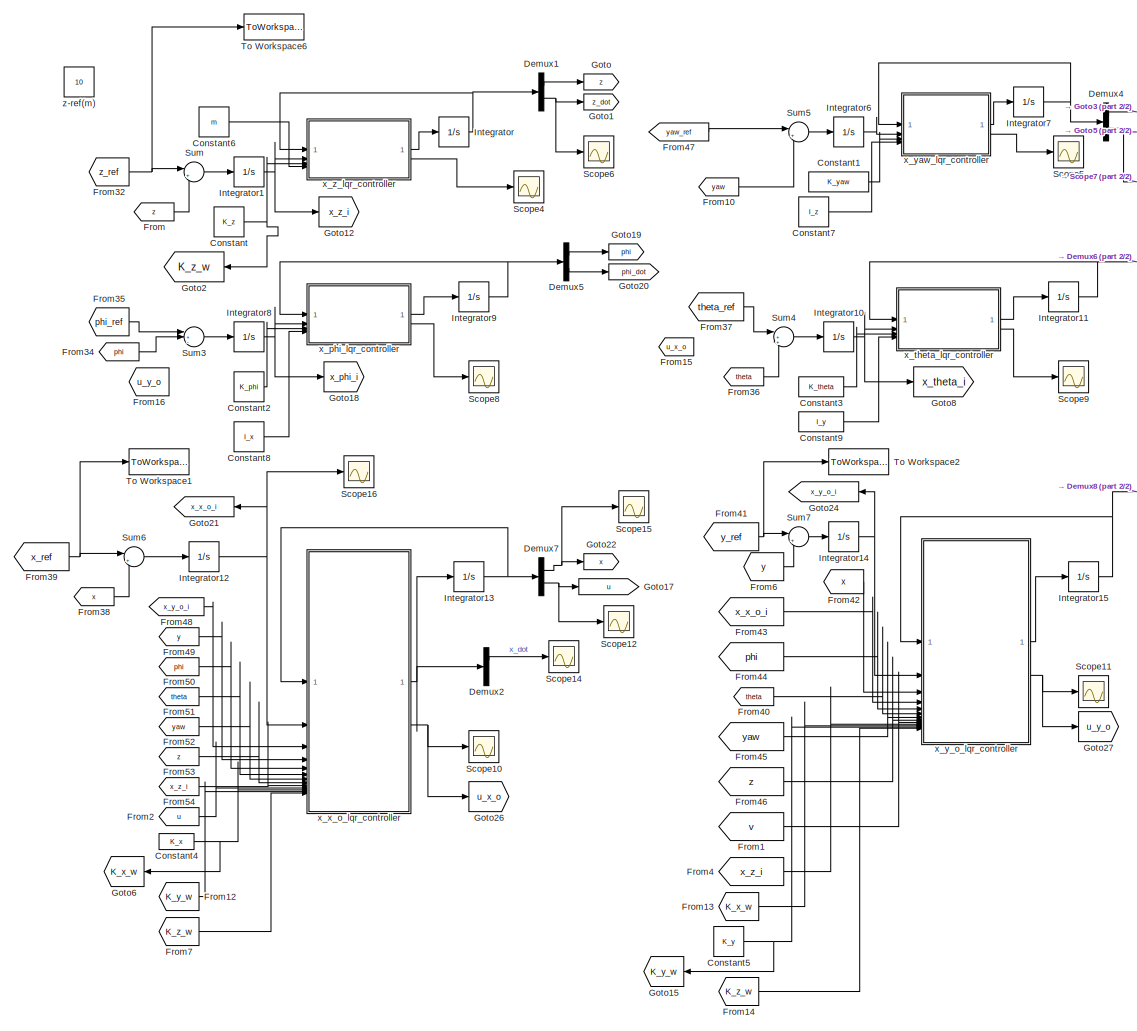
[diagram: root canvas - part 1/2, center side, full height]
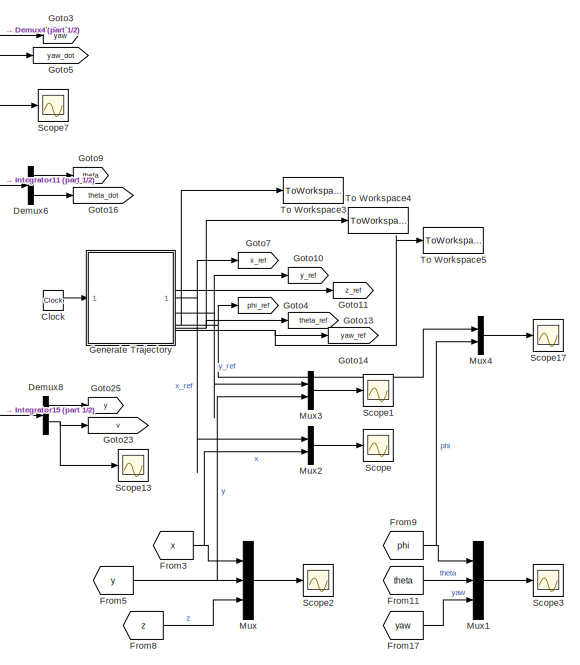
[diagram: root canvas - part 2/2, middle right region]
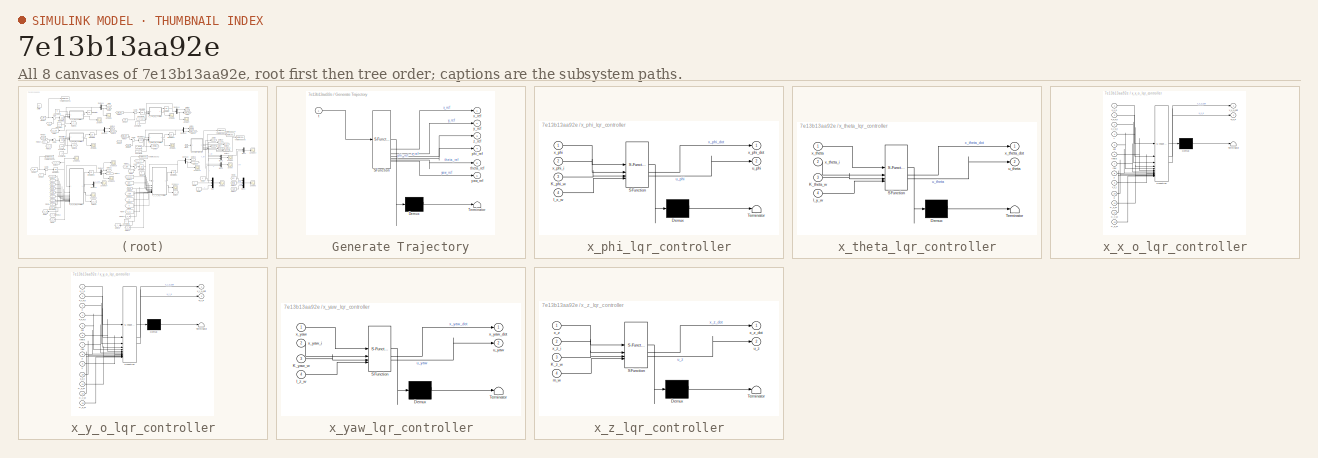
[diagram: thumbnail index - all 8 canvases of the model, root first then tree order]
MODEL slx_7e13b13aa92e
KIND model
CONFIG AbsTol = auto
CONFIG EnableMultiTasking = off
CONFIG FixedStep = 1e-2
CONFIG InitFcn = drone_init_param
CONFIG MaxStep = auto
CONFIG MinStep = auto
CONFIG RelTol = 1e-3
CONFIG SampleTimeConstraint = Unconstrained
CONFIG SolverName = FixedStepAuto
CONFIG StartTime = 0.0
CONFIG StopTime = 200
BLOCK [Clock] Clock
BLOCK [Constant] Constant
  Value = K_z
BLOCK [Constant] Constant1
  Value = K_yaw
BLOCK [Constant] Constant2
  Value = K_phi
BLOCK [Constant] Constant3
  Value = K_theta
BLOCK [Constant] Constant4
  Value = K_x
BLOCK [Constant] Constant5
  Value = K_y
BLOCK [Constant] Constant6
  Value = m
BLOCK [Constant] Constant7
  Value = I_z
BLOCK [Constant] Constant8
  Value = I_x
BLOCK [Constant] Constant9
  Value = I_y
BLOCK [Demux] Demux1
  Outputs = 2
BLOCK [Demux] Demux2
  Outputs = 2
BLOCK [Demux] Demux4
  Outputs = 2
BLOCK [Demux] Demux5
  Outputs = 2
BLOCK [Demux] Demux6
  Outputs = 2
BLOCK [Demux] Demux7
  Outputs = 2
BLOCK [Demux] Demux8
  Outputs = 2
BLOCK [From] From
  GotoTag = z
BLOCK [From] From1
  GotoTag = v
BLOCK [From] From10
  GotoTag = yaw
BLOCK [From] From11
  GotoTag = theta
BLOCK [From] From12
  GotoTag = K_y_w
BLOCK [From] From13
  GotoTag = K_x_w
BLOCK [From] From14
  GotoTag = K_z_w
BLOCK [From] From15
  GotoTag = u_x_o
BLOCK [From] From16
  GotoTag = u_y_o
BLOCK [From] From17
  GotoTag = yaw
BLOCK [From] From2
  GotoTag = u
BLOCK [From] From3
  GotoTag = x
BLOCK [From] From32
  GotoTag = z_ref
BLOCK [From] From34
  GotoTag = phi
BLOCK [From] From35
  GotoTag = phi_ref
BLOCK [From] From36
  GotoTag = theta
BLOCK [From] From37
  GotoTag = theta_ref
BLOCK [From] From38
  GotoTag = x
BLOCK [From] From39
  GotoTag = x_ref
BLOCK [From] From4
  GotoTag = x_z_i
BLOCK [From] From40
  GotoTag = theta
BLOCK [From] From41
  GotoTag = y_ref
BLOCK [From] From42
  GotoTag = x
BLOCK [From] From43
  GotoTag = x_x_o_i
BLOCK [From] From44
  GotoTag = phi
BLOCK [From] From45
  GotoTag = yaw
BLOCK [From] From46
  GotoTag = z
BLOCK [From] From47
  GotoTag = yaw_ref
BLOCK [From] From48
  GotoTag = x_y_o_i
BLOCK [From] From49
  GotoTag = y
BLOCK [From] From5
  GotoTag = y
BLOCK [From] From50
  GotoTag = phi
BLOCK [From] From51
  GotoTag = theta
BLOCK [From] From52
  GotoTag = yaw
BLOCK [From] From53
  GotoTag = z
BLOCK [From] From54
  GotoTag = x_z_i
BLOCK [From] From6
  GotoTag = y
BLOCK [From] From7
  GotoTag = K_z_w
BLOCK [From] From8
  GotoTag = z
BLOCK [From] From9
  GotoTag = phi
BLOCK [SubSystem] Generate Trajectory
  ErrorFcn = Stateflow.Translate.translate
  LibrarySourceBlock = simulink/User-Defined\nFunctions/MATLAB Function
  PermitHierarchicalResolution = ExplicitOnly
  SFBlockType = MATLAB Function
  TreatAsAtomicUnit = on
BLOCK [Demux] Generate Trajectory/ Demux 
  Outputs = 1
BLOCK [S-Function] Generate Trajectory/ SFunction 
  EnableBusSupport = on
  FunctionName = sf_sfun
  PortCounts = [1 7]
  SFcnIsStateOwnerBlock = off
  SFunctionDeploymentMode = off
  Tag = Stateflow S-Function 2
BLOCK [Terminator] Generate Trajectory/ Terminator 
BLOCK [Outport] Generate Trajectory/phi_ref
  Port = 4
BLOCK [Inport] Generate Trajectory/t
BLOCK [Outport] Generate Trajectory/theta_ref
  Port = 5
BLOCK [Outport] Generate Trajectory/x_ref
BLOCK [Outport] Generate Trajectory/y_ref
  Port = 2
BLOCK [Outport] Generate Trajectory/yaw_ref
  Port = 6
BLOCK [Outport] Generate Trajectory/z_ref
  Port = 3
BLOCK [Goto] Goto
  GotoTag = z
BLOCK [Goto] Goto1
  GotoTag = z_dot
BLOCK [Goto] Goto10
  GotoTag = y_ref
BLOCK [Goto] Goto11
  GotoTag = z_ref
BLOCK [Goto] Goto12
  GotoTag = x_z_i
BLOCK [Goto] Goto13
  GotoTag = theta_ref
BLOCK [Goto] Goto14
  GotoTag = yaw_ref
BLOCK [Goto] Goto15
  GotoTag = K_y_w
  NameLocation = top
BLOCK [Goto] Goto16
  GotoTag = theta_dot
BLOCK [Goto] Goto17
  GotoTag = u
BLOCK [Goto] Goto18
  GotoTag = x_phi_i
BLOCK [Goto] Goto19
  GotoTag = phi
BLOCK [Goto] Goto2
  GotoTag = K_z_w
  NameLocation = top
BLOCK [Goto] Goto20
  GotoTag = phi_dot
BLOCK [Goto] Goto21
  GotoTag = x_x_o_i
  NameLocation = top
BLOCK [Goto] Goto22
  GotoTag = x
BLOCK [Goto] Goto23
  GotoTag = v
BLOCK [Goto] Goto24
  GotoTag = x_y_o_i
  NameLocation = top
BLOCK [Goto] Goto25
  GotoTag = y
BLOCK [Goto] Goto26
  GotoTag = u_x_o
BLOCK [Goto] Goto27
  GotoTag = u_y_o
BLOCK [Goto] Goto3
  GotoTag = yaw
BLOCK [Goto] Goto4
  GotoTag = phi_ref
BLOCK [Goto] Goto5
  GotoTag = yaw_dot
BLOCK [Goto] Goto6
  GotoTag = K_x_w
  NameLocation = top
BLOCK [Goto] Goto7
  GotoTag = x_ref
BLOCK [Goto] Goto8
  GotoTag = x_theta_i
BLOCK [Goto] Goto9
  GotoTag = theta
BLOCK [Integrator] Integrator
  InitialCondition = [0;0]
BLOCK [Integrator] Integrator1
BLOCK [Integrator] Integrator10
BLOCK [Integrator] Integrator11
  InitialCondition = [0;0]
BLOCK [Integrator] Integrator12
BLOCK [Integrator] Integrator13
  InitialCondition = [0;0]
BLOCK [Integrator] Integrator14
BLOCK [Integrator] Integrator15
  InitialCondition = [0;0]
BLOCK [Integrator] Integrator6
BLOCK [Integrator] Integrator7
  InitialCondition = [0;0]
BLOCK [Integrator] Integrator8
BLOCK [Integrator] Integrator9
  InitialCondition = [0;0]
BLOCK [Mux] Mux
  DisplayOption = bar
  Inputs = 3
BLOCK [Mux] Mux1
  DisplayOption = bar
  Inputs = 3
BLOCK [Mux] Mux2
  DisplayOption = bar
  Inputs = 2
BLOCK [Mux] Mux3
  DisplayOption = bar
  Inputs = 2
BLOCK [Mux] Mux4
  DisplayOption = bar
  Inputs = 2
BLOCK [Scope] Scope
  Floating = off
  NumInputPorts = 1
  ScopeSpecificationString = Simulink.scopes.TimeScopeBlockCfg('CurrentConfiguration', extmgr.ConfigurationSet(extmgr.Configuration('Core','General UI',true),extmgr.Configuration('Core','Source UI',true),extmgr.Configuration('Sources','WiredSimulink',true,'DataLoggingVariableName','ScopeData5'),extmgr.Configuration('Visuals','Time Domain',true,'SerializedDisplays',{struct('MinYLimReal','-1.3125','MaxYLimReal','1.8125','YLabel...<+1444ch>
BLOCK [Scope] Scope1
  Floating = off
  NumInputPorts = 1
  ScopeSpecificationString = Simulink.scopes.TimeScopeBlockCfg('CurrentConfiguration', extmgr.ConfigurationSet(extmgr.Configuration('Core','General UI',true),extmgr.Configuration('Core','Source UI',true),extmgr.Configuration('Sources','WiredSimulink',true,'DataLoggingVariableName','ScopeData6'),extmgr.Configuration('Visuals','Time Domain',true,'SerializedDisplays',{struct('MinYLimReal','-0.9226','MaxYLimReal','1.3047','YLabel...<+1444ch>
BLOCK [Scope] Scope10
  Floating = off
  NumInputPorts = 1
  ScopeSpecificationString = Simulink.scopes.TimeScopeBlockCfg('CurrentConfiguration', extmgr.ConfigurationSet(extmgr.Configuration('Core','General UI',true),extmgr.Configuration('Core','Source UI',true),extmgr.Configuration('Sources','WiredSimulink',true,'DataLoggingVariableName','ScopeData3'),extmgr.Configuration('Visuals','Time Domain',true,'SerializedDisplays',{struct('MinYLimReal','-0.24302','MaxYLimReal','0.13995','YLab...<+1450ch>
BLOCK [Scope] Scope11
  Floating = off
  NumInputPorts = 1
  ScopeSpecificationString = Simulink.scopes.TimeScopeBlockCfg('CurrentConfiguration', extmgr.ConfigurationSet(extmgr.Configuration('Core','General UI',true),extmgr.Configuration('Core','Source UI',true),extmgr.Configuration('Sources','WiredSimulink',true,'DataLoggingVariableName','ScopeData4'),extmgr.Configuration('Visuals','Time Domain',true,'SerializedDisplays',{struct('MinYLimReal','-0.0026','MaxYLimReal','0.0026','YLabel...<+1419ch>
BLOCK [Scope] Scope12
  Floating = off
  NumInputPorts = 1
  ScopeSpecificationString = Simulink.scopes.TimeScopeBlockCfg('CurrentConfiguration', extmgr.ConfigurationSet(extmgr.Configuration('Core','General UI',true),extmgr.Configuration('Core','Source UI',true),extmgr.Configuration('Sources','WiredSimulink',true,'DataLoggingVariableName','ScopeData3'),extmgr.Configuration('Visuals','Time Domain',true,'SerializedDisplays',{struct('MinYLimReal','-1.02575','MaxYLimReal','0.5935','YLabe...<+1430ch>
BLOCK [Scope] Scope13
  Floating = off
  NumInputPorts = 1
  ScopeSpecificationString = Simulink.scopes.TimeScopeBlockCfg('CurrentConfiguration', extmgr.ConfigurationSet(extmgr.Configuration('Core','General UI',true),extmgr.Configuration('Core','Source UI',true),extmgr.Configuration('Sources','WiredSimulink',true,'DataLoggingVariableName','ScopeData4'),extmgr.Configuration('Visuals','Time Domain',true,'SerializedDisplays',{struct('MinYLimReal','-0.03084','MaxYLimReal','0.02581','YLab...<+1407ch>
BLOCK [Scope] Scope14
  Floating = off
  NumInputPorts = 1
  ScopeSpecificationString = Simulink.scopes.TimeScopeBlockCfg('CurrentConfiguration', extmgr.ConfigurationSet(extmgr.Configuration('Core','General UI',true),extmgr.Configuration('Core','Source UI',true),extmgr.Configuration('Sources','WiredSimulink',true,'DataLoggingVariableName','ScopeData1'),extmgr.Configuration('Visuals','Time Domain',true,'SerializedDisplays',{struct('MinYLimReal','-0.91634','MaxYLimReal','0.9394','YLabe...<+1425ch>
BLOCK [Scope] Scope15
  Floating = off
  NumInputPorts = 1
  ScopeSpecificationString = Simulink.scopes.TimeScopeBlockCfg('CurrentConfiguration', extmgr.ConfigurationSet(extmgr.Configuration('Core','General UI',true),extmgr.Configuration('Core','Source UI',true),extmgr.Configuration('Sources','WiredSimulink',true,'DataLoggingVariableName','ScopeData2'),extmgr.Configuration('Visuals','Time Domain',true,'SerializedDisplays',{struct('MinYLimReal','-1.40344','MaxYLimReal','1.85507','YLab...<+1432ch>
BLOCK [Scope] Scope16
  Floating = off
  NumInputPorts = 1
  ScopeSpecificationString = Simulink.scopes.TimeScopeBlockCfg('CurrentConfiguration', extmgr.ConfigurationSet(extmgr.Configuration('Core','General UI',true),extmgr.Configuration('Core','Source UI',true),extmgr.Configuration('Sources','WiredSimulink',true,'DataLoggingVariableName','ScopeData1'),extmgr.Configuration('Visuals','Time Domain',true,'SerializedDisplays',{struct('MinYLimReal','-1.44918','MaxYLimReal','1.92827','YLab...<+1415ch>
BLOCK [Scope] Scope17
  Floating = off
  NumInputPorts = 1
  ScopeSpecificationString = Simulink.scopes.TimeScopeBlockCfg('CurrentConfiguration', extmgr.ConfigurationSet(extmgr.Configuration('Core','General UI',true),extmgr.Configuration('Core','Source UI',true),extmgr.Configuration('Sources','WiredSimulink',true,'DataLoggingVariableName','ScopeData1'),extmgr.Configuration('Visuals','Time Domain',true,'SerializedDisplays',{struct('MinYLimReal','-0.02705','MaxYLimReal','0.22705','YLab...<+1501ch>
BLOCK [Scope] Scope2
  Floating = off
  NumInputPorts = 1
  ScopeSpecificationString = Simulink.scopes.TimeScopeBlockCfg('CurrentConfiguration', extmgr.ConfigurationSet(extmgr.Configuration('Core','General UI',true),extmgr.Configuration('Core','Source UI',true),extmgr.Configuration('Sources','WiredSimulink',true,'DataLogging',true,'DataLoggingVariableName','pos','DataLoggingSaveFormat','Array'),extmgr.Configuration('Visuals','Time Domain',true,'SerializedDisplays',{struct('MinYLimRe...<+1565ch>
BLOCK [Scope] Scope3
  Floating = off
  NumInputPorts = 1
  ScopeSpecificationString = Simulink.scopes.TimeScopeBlockCfg('CurrentConfiguration', extmgr.ConfigurationSet(extmgr.Configuration('Core','General UI',true),extmgr.Configuration('Core','Source UI',true),extmgr.Configuration('Sources','WiredSimulink',true,'DataLoggingVariableName','angle','DataLogging',true,'DataLoggingSaveFormat','Array'),extmgr.Configuration('Visuals','Time Domain',true,'SerializedDisplays',{struct('MinYLim...<+1553ch>
BLOCK [Scope] Scope4
  Floating = off
  NumInputPorts = 1
  ScopeSpecificationString = Simulink.scopes.TimeScopeBlockCfg('CurrentConfiguration', extmgr.ConfigurationSet(extmgr.Configuration('Core','General UI',true),extmgr.Configuration('Core','Source UI',true),extmgr.Configuration('Sources','WiredSimulink',true,'DataLoggingVariableName','ScopeData1'),extmgr.Configuration('Visuals','Time Domain',true,'SerializedDisplays',{struct('MinYLimReal','-0.46456','MaxYLimReal','0.59003','YLab...<+1421ch>
BLOCK [Scope] Scope5
  Floating = off
  NumInputPorts = 1
  ScopeSpecificationString = Simulink.scopes.TimeScopeBlockCfg('CurrentConfiguration', extmgr.ConfigurationSet(extmgr.Configuration('Core','General UI',true),extmgr.Configuration('Core','Source UI',true),extmgr.Configuration('Sources','WiredSimulink',true,'DataLoggingVariableName','ScopeData2'),extmgr.Configuration('Visuals','Time Domain',true,'SerializedDisplays',{struct('MinYLimReal','-1.00000','MaxYLimReal','1.00000','YLab...<+1385ch>
BLOCK [Scope] Scope6
  Floating = off
  NumInputPorts = 1
  ScopeSpecificationString = Simulink.scopes.TimeScopeBlockCfg('CurrentConfiguration', extmgr.ConfigurationSet(extmgr.Configuration('Core','General UI',true),extmgr.Configuration('Core','Source UI',true),extmgr.Configuration('Sources','WiredSimulink',true,'DataLoggingVariableName','ScopeData1'),extmgr.Configuration('Visuals','Time Domain',true,'SerializedDisplays',{struct('MinYLimReal','-0.45022','MaxYLimReal','0.62174','YLab...<+1407ch>
BLOCK [Scope] Scope7
  Floating = off
  NumInputPorts = 1
  ScopeSpecificationString = Simulink.scopes.TimeScopeBlockCfg('CurrentConfiguration', extmgr.ConfigurationSet(extmgr.Configuration('Core','General UI',true),extmgr.Configuration('Core','Source UI',true),extmgr.Configuration('Sources','WiredSimulink',true,'DataLoggingVariableName','ScopeData2'),extmgr.Configuration('Visuals','Time Domain',true),extmgr.Configuration('Tools','Plot Navigation',true),extmgr.Configuration('Tools',...<+40ch>
BLOCK [Scope] Scope8
  Floating = off
  NumInputPorts = 1
  ScopeSpecificationString = Simulink.scopes.TimeScopeBlockCfg('CurrentConfiguration', extmgr.ConfigurationSet(extmgr.Configuration('Core','General UI',true),extmgr.Configuration('Core','Source UI',true),extmgr.Configuration('Sources','WiredSimulink',true,'DataLoggingVariableName','ScopeData1'),extmgr.Configuration('Visuals','Time Domain',true,'SerializedDisplays',{struct('MinYLimReal','-0.00105','MaxYLimReal','0.00105','YLab...<+1385ch>
BLOCK [Scope] Scope9
  Floating = off
  NumInputPorts = 1
  ScopeSpecificationString = Simulink.scopes.TimeScopeBlockCfg('CurrentConfiguration', extmgr.ConfigurationSet(extmgr.Configuration('Core','General UI',true),extmgr.Configuration('Core','Source UI',true),extmgr.Configuration('Sources','WiredSimulink',true,'DataLoggingVariableName','ScopeData2'),extmgr.Configuration('Visuals','Time Domain',true,'SerializedDisplays',{struct('MinYLimReal','-0.00781','MaxYLimReal','0.00782','YLab...<+1389ch>
BLOCK [Sum] Sum
  Inputs = |+-
BLOCK [Sum] Sum3
  Inputs = |+-+
BLOCK [Sum] Sum4
  Inputs = |++-
BLOCK [Sum] Sum5
  Inputs = |+-
BLOCK [Sum] Sum6
  Inputs = |+-
BLOCK [Sum] Sum7
  Inputs = |+-
BLOCK [ToWorkspace] To Workspace1
  FixptAsFi = on
  MaxDataPoints = inf
  SampleTime = -1
  VariableName = x_ref
BLOCK [ToWorkspace] To Workspace2
  FixptAsFi = on
  MaxDataPoints = inf
  SampleTime = -1
  VariableName = y_ref
BLOCK [ToWorkspace] To Workspace3
  FixptAsFi = on
  MaxDataPoints = inf
  SampleTime = -1
  VariableName = phi_ref
BLOCK [ToWorkspace] To Workspace4
  FixptAsFi = on
  MaxDataPoints = inf
  SampleTime = -1
  VariableName = theta_ref
BLOCK [ToWorkspace] To Workspace5
  FixptAsFi = on
  MaxDataPoints = inf
  SampleTime = -1
  VariableName = yaw_ref
BLOCK [ToWorkspace] To Workspace6
  FixptAsFi = on
  MaxDataPoints = inf
  SampleTime = -1
  VariableName = z_ref
BLOCK [SubSystem] x_phi_lqr_controller
  ErrorFcn = Stateflow.Translate.translate
  PermitHierarchicalResolution = ExplicitOnly
  SFBlockType = MATLAB Function
  TreatAsAtomicUnit = on
BLOCK [Demux] x_phi_lqr_controller/ Demux 
  Outputs = 1
BLOCK [S-Function] x_phi_lqr_controller/ SFunction 
  EnableBusSupport = on
  FunctionName = sf_sfun
  PortCounts = [4 3]
  SFcnIsStateOwnerBlock = off
  SFunctionDeploymentMode = off
  Tag = Stateflow S-Function 5
BLOCK [Terminator] x_phi_lqr_controller/ Terminator 
BLOCK [Inport] x_phi_lqr_controller/I_x_w
  Port = 4
BLOCK [Inport] x_phi_lqr_controller/K_phi_w
  Port = 3
BLOCK [Outport] x_phi_lqr_controller/u_phi
  Port = 2
BLOCK [Inport] x_phi_lqr_controller/x_phi
BLOCK [Outport] x_phi_lqr_controller/x_phi_dot
  VectorParamsAs1DForOutWhenUnconnected = off
BLOCK [Inport] x_phi_lqr_controller/x_phi_i
  Port = 2
BLOCK [SubSystem] x_theta_lqr_controller
  ErrorFcn = Stateflow.Translate.translate
  PermitHierarchicalResolution = ExplicitOnly
  SFBlockType = MATLAB Function
  TreatAsAtomicUnit = on
BLOCK [Demux] x_theta_lqr_controller/ Demux 
  Outputs = 1
BLOCK [S-Function] x_theta_lqr_controller/ SFunction 
  EnableBusSupport = on
  FunctionName = sf_sfun
  PortCounts = [4 3]
  SFcnIsStateOwnerBlock = off
  SFunctionDeploymentMode = off
  Tag = Stateflow S-Function 6
BLOCK [Terminator] x_theta_lqr_controller/ Terminator 
BLOCK [Inport] x_theta_lqr_controller/I_y_w
  Port = 4
BLOCK [Inport] x_theta_lqr_controller/K_theta_w
  Port = 3
BLOCK [Outport] x_theta_lqr_controller/u_theta
  Port = 2
BLOCK [Inport] x_theta_lqr_controller/x_theta
BLOCK [Outport] x_theta_lqr_controller/x_theta_dot
  VectorParamsAs1DForOutWhenUnconnected = off
BLOCK [Inport] x_theta_lqr_controller/x_theta_i
  Port = 2
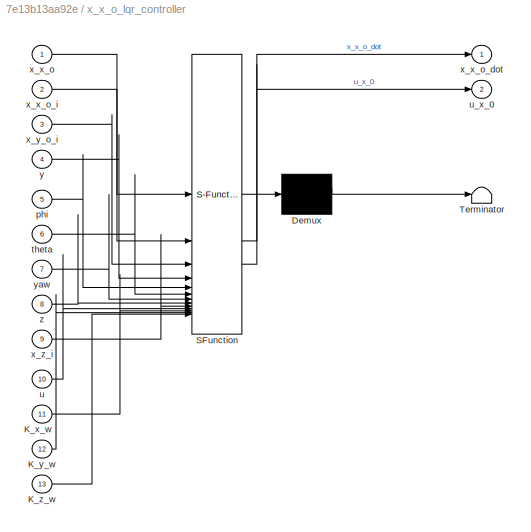
BLOCK [SubSystem] x_x_o_lqr_controller
  ErrorFcn = Stateflow.Translate.translate
  PermitHierarchicalResolution = ExplicitOnly
  SFBlockType = MATLAB Function
  TreatAsAtomicUnit = on
BLOCK [Demux] x_x_o_lqr_controller/ Demux 
  Outputs = 1
BLOCK [S-Function] x_x_o_lqr_controller/ SFunction 
  EnableBusSupport = on
  FunctionName = sf_sfun
  PortCounts = [13 3]
  SFcnIsStateOwnerBlock = off
  SFunctionDeploymentMode = off
  Tag = Stateflow S-Function 8
BLOCK [Terminator] x_x_o_lqr_controller/ Terminator 
BLOCK [Inport] x_x_o_lqr_controller/K_x_w
  Port = 11
BLOCK [Inport] x_x_o_lqr_controller/K_y_w
  Port = 12
BLOCK [Inport] x_x_o_lqr_controller/K_z_w
  Port = 13
BLOCK [Inport] x_x_o_lqr_controller/phi
  Port = 5
BLOCK [Inport] x_x_o_lqr_controller/theta
  Port = 6
BLOCK [Inport] x_x_o_lqr_controller/u
  Port = 10
BLOCK [Outport] x_x_o_lqr_controller/u_x_0
  Port = 2
BLOCK [Inport] x_x_o_lqr_controller/x_x_o
BLOCK [Outport] x_x_o_lqr_controller/x_x_o_dot
  VectorParamsAs1DForOutWhenUnconnected = off
BLOCK [Inport] x_x_o_lqr_controller/x_x_o_i
  Port = 2
BLOCK [Inport] x_x_o_lqr_controller/x_y_o_i
  Port = 3
BLOCK [Inport] x_x_o_lqr_controller/x_z_i
  Port = 9
BLOCK [Inport] x_x_o_lqr_controller/y
  Port = 4
BLOCK [Inport] x_x_o_lqr_controller/yaw
  Port = 7
BLOCK [Inport] x_x_o_lqr_controller/z
  Port = 8
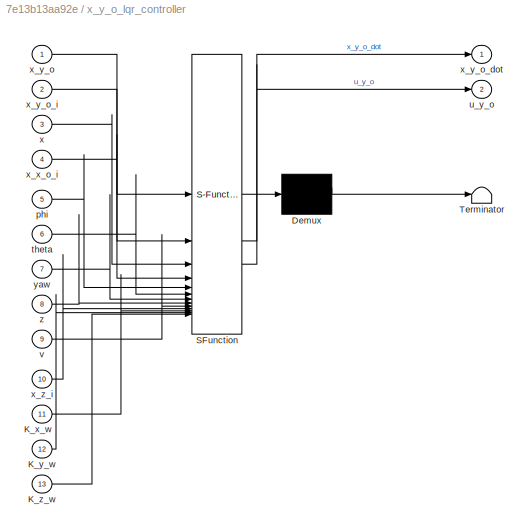
BLOCK [SubSystem] x_y_o_lqr_controller
  ErrorFcn = Stateflow.Translate.translate
  PermitHierarchicalResolution = ExplicitOnly
  SFBlockType = MATLAB Function
  TreatAsAtomicUnit = on
BLOCK [Demux] x_y_o_lqr_controller/ Demux 
  Outputs = 1
BLOCK [S-Function] x_y_o_lqr_controller/ SFunction 
  EnableBusSupport = on
  FunctionName = sf_sfun
  PortCounts = [13 3]
  SFcnIsStateOwnerBlock = off
  SFunctionDeploymentMode = off
  Tag = Stateflow S-Function 9
BLOCK [Terminator] x_y_o_lqr_controller/ Terminator 
BLOCK [Inport] x_y_o_lqr_controller/K_x_w
  Port = 11
BLOCK [Inport] x_y_o_lqr_controller/K_y_w
  Port = 12
BLOCK [Inport] x_y_o_lqr_controller/K_z_w
  Port = 13
BLOCK [Inport] x_y_o_lqr_controller/phi
  Port = 5
BLOCK [Inport] x_y_o_lqr_controller/theta
  Port = 6
BLOCK [Outport] x_y_o_lqr_controller/u_y_o
  Port = 2
BLOCK [Inport] x_y_o_lqr_controller/v
  Port = 9
BLOCK [Inport] x_y_o_lqr_controller/x
  Port = 3
BLOCK [Inport] x_y_o_lqr_controller/x_x_o_i
  Port = 4
BLOCK [Inport] x_y_o_lqr_controller/x_y_o
BLOCK [Outport] x_y_o_lqr_controller/x_y_o_dot
  VectorParamsAs1DForOutWhenUnconnected = off
BLOCK [Inport] x_y_o_lqr_controller/x_y_o_i
  Port = 2
BLOCK [Inport] x_y_o_lqr_controller/x_z_i
  Port = 10
BLOCK [Inport] x_y_o_lqr_controller/yaw
  Port = 7
BLOCK [Inport] x_y_o_lqr_controller/z
  Port = 8
BLOCK [SubSystem] x_yaw_lqr_controller
  ErrorFcn = Stateflow.Translate.translate
  PermitHierarchicalResolution = ExplicitOnly
  SFBlockType = MATLAB Function
  TreatAsAtomicUnit = on
BLOCK [Demux] x_yaw_lqr_controller/ Demux 
  Outputs = 1
BLOCK [S-Function] x_yaw_lqr_controller/ SFunction 
  EnableBusSupport = on
  FunctionName = sf_sfun
  PortCounts = [4 3]
  SFcnIsStateOwnerBlock = off
  SFunctionDeploymentMode = off
  Tag = Stateflow S-Function 7
BLOCK [Terminator] x_yaw_lqr_controller/ Terminator 
BLOCK [Inport] x_yaw_lqr_controller/I_z_w
  Port = 4
BLOCK [Inport] x_yaw_lqr_controller/K_yaw_w
  Port = 3
BLOCK [Outport] x_yaw_lqr_controller/u_yaw
  Port = 2
BLOCK [Inport] x_yaw_lqr_controller/x_yaw
BLOCK [Outport] x_yaw_lqr_controller/x_yaw_dot
  VectorParamsAs1DForOutWhenUnconnected = off
BLOCK [Inport] x_yaw_lqr_controller/x_yaw_i
  Port = 2
BLOCK [SubSystem] x_z_lqr_controller
  ErrorFcn = Stateflow.Translate.translate
  PermitHierarchicalResolution = ExplicitOnly
  SFBlockType = MATLAB Function
  TreatAsAtomicUnit = on
BLOCK [Demux] x_z_lqr_controller/ Demux 
  Outputs = 1
BLOCK [S-Function] x_z_lqr_controller/ SFunction 
  EnableBusSupport = on
  FunctionName = sf_sfun
  PortCounts = [4 3]
  SFcnIsStateOwnerBlock = off
  SFunctionDeploymentMode = off
  Tag = Stateflow S-Function 3
BLOCK [Terminator] x_z_lqr_controller/ Terminator 
BLOCK [Inport] x_z_lqr_controller/K_z_w
  Port = 3
BLOCK [Inport] x_z_lqr_controller/m_w
  Port = 4
BLOCK [Outport] x_z_lqr_controller/u_z
  Port = 2
BLOCK [Inport] x_z_lqr_controller/x_z
BLOCK [Outport] x_z_lqr_controller/x_z_dot
  VectorParamsAs1DForOutWhenUnconnected = off
BLOCK [Inport] x_z_lqr_controller/x_z_i
  Port = 2
BLOCK [Constant] z-ref(m)
  Value = 10
LINE Clock:1 -> Generate Trajectory:1
LINE Constant1:1 -> x_yaw_lqr_controller:3
LINE Constant2:1 -> x_phi_lqr_controller:3
LINE Constant3:1 -> x_theta_lqr_controller:3
NET Constant4:1 -> Goto6:1, x_x_o_lqr_controller:11
NET Constant5:1 -> Goto15:1, x_y_o_lqr_controller:12
LINE Constant6:1 -> x_z_lqr_controller:4
LINE Constant7:1 -> x_yaw_lqr_controller:4
LINE Constant8:1 -> x_phi_lqr_controller:4
LINE Constant9:1 -> x_theta_lqr_controller:4
NET Constant:1 -> Goto2:1, x_z_lqr_controller:3
LINE Demux1:1 -> Goto:1
NET Demux1:2 -> Goto1:1, Scope6:1
LINE Demux2:1 -> Scope14:1
LINE Demux4:1 -> Goto3:1
NET Demux4:2 -> Goto5:1, Scope7:1
LINE Demux5:1 -> Goto19:1
LINE Demux5:2 -> Goto20:1
LINE Demux6:1 -> Goto9:1
LINE Demux6:2 -> Goto16:1
NET Demux7:1 -> Goto22:1, Scope15:1
NET Demux7:2 -> Goto17:1, Scope12:1
LINE Demux8:1 -> Goto25:1
NET Demux8:2 -> Goto23:1, Scope13:1
LINE From10:1 -> Sum5:2
LINE From11:1 -> Mux1:2
LINE From12:1 -> x_x_o_lqr_controller:12
LINE From13:1 -> x_y_o_lqr_controller:11
LINE From14:1 -> x_y_o_lqr_controller:13
LINE From17:1 -> Mux1:3
LINE From1:1 -> x_y_o_lqr_controller:9
LINE From2:1 -> x_x_o_lqr_controller:10
NET From32:1 -> Sum:1, To Workspace6:1
LINE From34:1 -> Sum3:2
LINE From35:1 -> Sum3:1
LINE From36:1 -> Sum4:3
LINE From37:1 -> Sum4:1
LINE From38:1 -> Sum6:2
NET From39:1 -> Sum6:1, To Workspace1:1
NET From3:1 -> Mux2:2, Mux:1
LINE From40:1 -> x_y_o_lqr_controller:6
NET From41:1 -> Sum7:1, To Workspace2:1
LINE From42:1 -> x_y_o_lqr_controller:3
LINE From43:1 -> x_y_o_lqr_controller:4
LINE From44:1 -> x_y_o_lqr_controller:5
LINE From45:1 -> x_y_o_lqr_controller:7
LINE From46:1 -> x_y_o_lqr_controller:8
LINE From47:1 -> Sum5:1
LINE From48:1 -> x_x_o_lqr_controller:3
LINE From49:1 -> x_x_o_lqr_controller:4
LINE From4:1 -> x_y_o_lqr_controller:10
LINE From50:1 -> x_x_o_lqr_controller:5
LINE From51:1 -> x_x_o_lqr_controller:6
LINE From52:1 -> x_x_o_lqr_controller:7
LINE From53:1 -> x_x_o_lqr_controller:8
LINE From54:1 -> x_x_o_lqr_controller:9
NET From5:1 -> Mux3:2, Mux:2
LINE From6:1 -> Sum7:2
LINE From7:1 -> x_x_o_lqr_controller:13
LINE From8:1 -> Mux:3
NET From9:1 -> Mux1:1, Mux4:2
LINE From:1 -> Sum:2
NET Generate Trajectory:1 -> Goto7:1, Mux2:1
NET Generate Trajectory:2 -> Goto10:1, Mux3:1
LINE Generate Trajectory:3 -> Goto11:1
NET Generate Trajectory:4 -> Goto4:1, Mux4:1, To Workspace3:1
NET Generate Trajectory:5 -> Goto13:1, To Workspace4:1
NET Generate Trajectory:6 -> Goto14:1, To Workspace5:1
NET Integrator10:1 -> Goto8:1, x_theta_lqr_controller:2
NET Integrator11:1 -> Demux6:1, x_theta_lqr_controller:1
NET Integrator12:1 -> Goto21:1, Scope16:1, x_x_o_lqr_controller:2
NET Integrator13:1 -> Demux7:1, x_x_o_lqr_controller:1
NET Integrator14:1 -> Goto24:1, x_y_o_lqr_controller:2
NET Integrator15:1 -> Demux8:1, x_y_o_lqr_controller:1
NET Integrator1:1 -> Goto12:1, x_z_lqr_controller:2
LINE Integrator6:1 -> x_yaw_lqr_controller:2
NET Integrator7:1 -> Demux4:1, x_yaw_lqr_controller:1
NET Integrator8:1 -> Goto18:1, x_phi_lqr_controller:2
NET Integrator9:1 -> Demux5:1, x_phi_lqr_controller:1
NET Integrator:1 -> Demux1:1, x_z_lqr_controller:1
LINE Mux1:1 -> Scope3:1
LINE Mux2:1 -> Scope:1
LINE Mux3:1 -> Scope1:1
LINE Mux4:1 -> Scope17:1
LINE Mux:1 -> Scope2:1
LINE Sum3:1 -> Integrator8:1
LINE Sum4:1 -> Integrator10:1
LINE Sum5:1 -> Integrator6:1
LINE Sum6:1 -> Integrator12:1
LINE Sum7:1 -> Integrator14:1
LINE Sum:1 -> Integrator1:1
LINE x_phi_lqr_controller:1 -> Integrator9:1
LINE x_phi_lqr_controller:2 -> Scope8:1
LINE x_theta_lqr_controller:1 -> Integrator11:1
LINE x_theta_lqr_controller:2 -> Scope9:1
NET x_x_o_lqr_controller:1 -> Demux2:1, Integrator13:1
NET x_x_o_lqr_controller:2 -> Goto26:1, Scope10:1
LINE x_y_o_lqr_controller:1 -> Integrator15:1
NET x_y_o_lqr_controller:2 -> Goto27:1, Scope11:1
LINE x_yaw_lqr_controller:1 -> Integrator7:1
LINE x_yaw_lqr_controller:2 -> Scope5:1
LINE x_z_lqr_controller:1 -> Integrator:1
LINE x_z_lqr_controller:2 -> Scope4:1
note: NET lines group one-source signal fan-out (src -> all destinations, sorted); 1:1 wires keep LINE
CHART x_y_o_lqr_controller states=1 transitions=1
  STATE_LABEL 'eML_blk_kernel()'
  STATE_LABEL "SCRIPT:\nfunction [x_y_o_dot, u_y_o] = lqr(x_y_o, x_y_o_i, x, x_x_o_i, phi, theta, yaw, z, v, x_z_i, K_x_w, K_y_w, K_z_w)\ng = 9.81;          % gravity                       (m/s^2)\n\n% Ky_o = [-0.2453 -0.2259];\n% Ky_o_i = 0.1000;\n% \n% Kz1 = 2.2026;\n% Kz2 = -1.0000;\n% \n% Kx_o_1 = 0.2453;\n% Kx_o_i = -0.1000;\nK_x_w = K_x_w';\nK_y_w = K_y_w';\nK_z_w = K_z_w';\n\nKy_o = K_y_w(1,1:2);\nKy_o_i = K_y_w(1,3);\n\nKz...<+487ch>"
CHART Generate Trajectory states=1 transitions=1
  STATE_LABEL 'eML_blk_kernel()'
  STATE_LABEL 'SCRIPT:\nfunction [x_ref, y_ref, z_ref, phi_ref, theta_ref, yaw_ref] = fcn(t)\n\n\n% GA-LQR study reference\n%     x_ref = 0;\n%     y_ref = 0;\n%     z_ref = 0;\n\n    % Step response\n%     if t >= 0 && t < 5        \n%         z_ref = 0;\n%         x_ref = 0;\n%         y_ref = 0;\n%         phi_ref = 0;\n%         theta_ref = 0;\n%         yaw_ref = 0;\n%     \n%     elseif t >= 5 && t < 15\n%         z_ref = 0;...<+2709ch>'
CHART x_z_lqr_controller states=1 transitions=1
  STATE_LABEL 'eML_blk_kernel()'
  STATE_LABEL "SCRIPT:\nfunction [x_z_dot, u_z] = lqr(x_z, x_z_i, K_z_w, m_w)\nm = m_w;\n\n%def 1-1-1\n% Kz = [ 2.2026    1.5925];\n% K1_z = -1.0000;\n\nK_z_w = K_z_w';\nKz = K_z_w(1,1:2);\nK1_z = K_z_w(1,3);\n\nu_z = -Kz * x_z - K1_z * x_z_i;\n\nA = zeros(2,2);\nB = zeros(2,1);\n\nA(1,2) = 1;\nB(2,1) = 1/m;\n\nx_z_dot = A * x_z + B * u_z;\n\nend\n"
CHART x_phi_lqr_controller states=1 transitions=1
  STATE_LABEL 'eML_blk_kernel()'
  STATE_LABEL "SCRIPT:\nfunction [x_phi_dot, u_phi] = lqr(x_phi, x_phi_i, K_phi_w, I_x_w)\n\n%def 1-1-1\nI_x = I_x_w;    % moment of inertia of uav      (kg.m^2)\n    \n% Kphi = [1.1654 0.2251];\n% K1_phi = -2.7386;\n\nK_phi_w = K_phi_w';\nKphi = K_phi_w(1,1:2);\nK1_phi = K_phi_w(1,3);\n\nu_phi = -Kphi * x_phi - K1_phi * x_phi_i;\n\nA = zeros(2,2);\nB = zeros(2,1);\n\nA(1,2) = 1;\nB(2,1) = 1/I_x;\n\nx_phi_dot = A * x_phi + B * u_phi...<+7ch>"
CHART x_theta_lqr_controller states=1 transitions=1
  STATE_LABEL 'eML_blk_kernel()'
  STATE_LABEL "SCRIPT:\nfunction [x_theta_dot, u_theta] = lqr(x_theta, x_theta_i, K_theta_w, I_y_w)\n\nI_y = I_y_w;\n\nK_theta_w = K_theta_w';\nKtheta = K_theta_w(1,1:2);\nKtheta_i = K_theta_w(1,3);\n\nu_theta = -Ktheta * x_theta - Ktheta_i * x_theta_i;\n\nA = zeros(2,2);\nB = zeros(2,1);\n\nA(1,2) = 1;\nB(2,1) = 1/I_y;\n\nx_theta_dot = A * x_theta + B * u_theta;\n\nend\n"
CHART x_yaw_lqr_controller states=1 transitions=1
  STATE_LABEL 'eML_blk_kernel()'
  STATE_LABEL "SCRIPT:\nfunction [x_yaw_dot, u_yaw] = lqr(x_yaw, x_yaw_i, K_yaw_w, I_z_w)\n\nI_z = I_z_w;\n\nA = zeros(2,2);\nB = zeros(2,1);\n\nA(1,2) = 1;\nB(2,1) = 1 / I_z;\n\n% Kyaw = [3.9387    1.0991];\n% Kyaw_i = -3.8730;\n\nK_yaw_w = K_yaw_w';\nKyaw = K_yaw_w(1,1:2);\nKyaw_i = K_yaw_w(1,3);\n\nu_yaw = -Kyaw * x_yaw - Kyaw_i * x_yaw_i;\n\nx_yaw_dot = A * x_yaw + B * u_yaw;\n\nend\n"
CHART x_x_o_lqr_controller states=1 transitions=1
  STATE_LABEL 'eML_blk_kernel()'
  STATE_LABEL "SCRIPT:\nfunction [x_x_o_dot, u_x_0] = lqr(x_x_o, x_x_o_i, x_y_o_i, y, phi, theta, yaw, z, x_z_i, u, K_x_w, K_y_w, K_z_w)\n\ng = 9.81;          % gravity                       (m/s^2)\n\n% Kx_o = [0.2453    0.2259];\n% Kx_o_i =  -0.1000;\n% \n% Ky_o_1 = -0.2453;\n% Ky_o_i = 0.1000;\n% \n% Kz1 = 2.2026;\n% Kz_i = -1.0000;\n\nK_x_w = K_x_w';\nK_y_w = K_y_w';\nK_z_w = K_z_w';\n\nKx_o = K_x_w(1,1:2);\nKx_o_i = K_x_w(1,3...<+491ch>"
CHART  states=0 transitions=0
CHART  states=0 transitions=0
CHART  states=0 transitions=0
CHART  states=0 transitions=0
CHART  states=0 transitions=0
CHART  states=0 transitions=0
CHART  states=0 transitions=0
